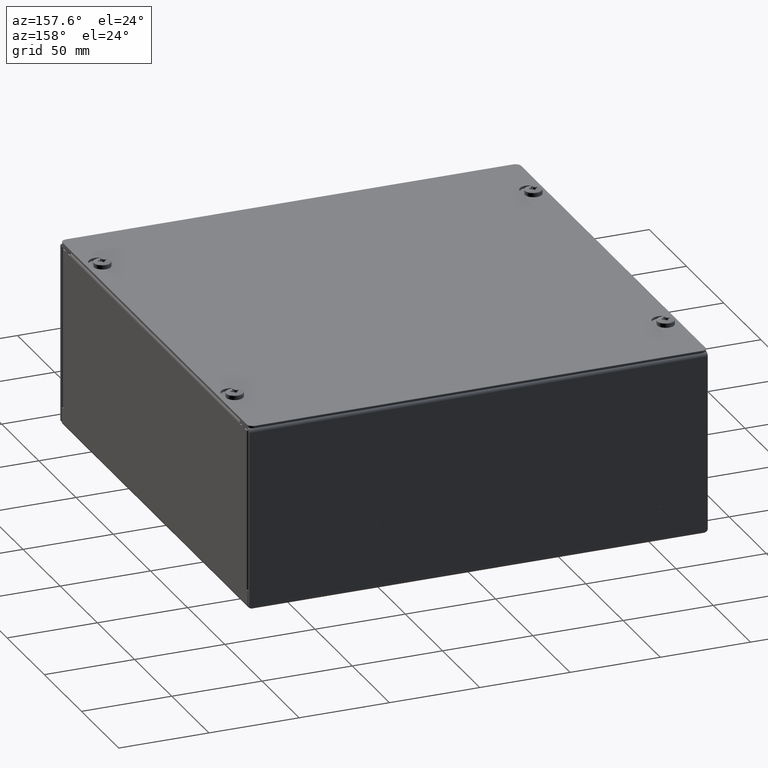
[diagram: clean part render]
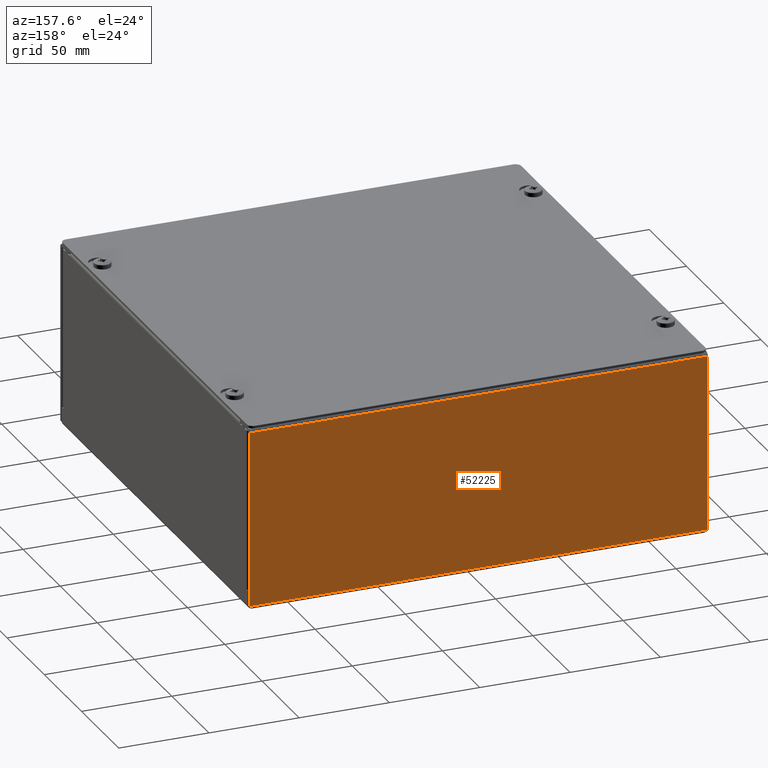
[diagram: same view with one face highlighted and labeled with its STEP entity id]
A machine part, auxiliary view. The second image highlights one B-rep face of the part: STEP entity #52225.
In plain terms, the highlighted planar face has unit normal (0, 1, -0).
Its self-contained STEP definition (entity closure, byte-faithful):
#4186=FACE_BOUND('',#9693,.T.);
#4187=FACE_BOUND('',#9694,.T.);
#4188=FACE_BOUND('',#9695,.T.);
#4189=FACE_BOUND('',#9696,.T.);
#4190=FACE_BOUND('',#9697,.T.);
#4191=FACE_BOUND('',#9698,.T.);
#4192=FACE_BOUND('',#9699,.T.);
#4193=FACE_BOUND('',#9700,.T.);
#4194=FACE_BOUND('',#9701,.T.);
#4195=FACE_BOUND('',#9702,.T.);
#4196=FACE_BOUND('',#9703,.T.);
#4197=FACE_BOUND('',#9704,.T.);
#4198=FACE_BOUND('',#9705,.T.);
#4199=FACE_BOUND('',#9706,.T.);
#4200=FACE_BOUND('',#9707,.T.);
#4201=FACE_BOUND('',#9708,.T.);
#4202=FACE_BOUND('',#9709,.T.);
#4203=FACE_BOUND('',#9710,.T.);
#4204=FACE_BOUND('',#9711,.T.);
#4205=FACE_BOUND('',#9712,.T.);
#4789=PLANE('',#55614);
#6790=FACE_OUTER_BOUND('',#9692,.T.);
#9692=EDGE_LOOP('',(#38918,#38919,#38920,#38921));
#9693=EDGE_LOOP('',(#38922,#38923,#38924,#38925));
#9694=EDGE_LOOP('',(#38926,#38927,#38928,#38929));
#9695=EDGE_LOOP('',(#38930,#38931,#38932,#38933));
#9696=EDGE_LOOP('',(#38934,#38935,#38936,#38937));
#9697=EDGE_LOOP('',(#38938,#38939,#38940,#38941));
#9698=EDGE_LOOP('',(#38942,#38943,#38944,#38945));
#9699=EDGE_LOOP('',(#38946,#38947,#38948,#38949));
#9700=EDGE_LOOP('',(#38950,#38951,#38952,#38953));
#9701=EDGE_LOOP('',(#38954,#38955,#38956,#38957));
#9702=EDGE_LOOP('',(#38958,#38959,#38960,#38961));
#9703=EDGE_LOOP('',(#38962,#38963,#38964,#38965));
#9704=EDGE_LOOP('',(#38966,#38967,#38968,#38969));
#9705=EDGE_LOOP('',(#38970,#38971,#38972,#38973));
#9706=EDGE_LOOP('',(#38974,#38975,#38976,#38977));
#9707=EDGE_LOOP('',(#38978,#38979,#38980,#38981));
#9708=EDGE_LOOP('',(#38982,#38983,#38984,#38985));
#9709=EDGE_LOOP('',(#38986,#38987,#38988,#38989));
#9710=EDGE_LOOP('',(#38990,#38991,#38992,#38993));
#9711=EDGE_LOOP('',(#38994,#38995,#38996,#38997));
#9712=EDGE_LOOP('',(#38998,#38999,#39000,#39001));
#12431=LINE('',#69014,#17936);
#12436=LINE('',#69025,#17941);
#12443=LINE('',#69046,#17948);
#12453=LINE('',#69077,#17958);
#12463=LINE('',#69110,#17968);
#12468=LINE('',#69121,#17973);
#12479=LINE('',#69158,#17984);
#12484=LINE('',#69169,#17989);
#12495=LINE('',#69206,#18000);
#12500=LINE('',#69217,#18005);
#12507=LINE('',#69238,#18012);
#12517=LINE('',#69269,#18022);
#12523=LINE('',#69286,#18028);
#12533=LINE('',#69317,#18038);
#12539=LINE('',#69334,#18044);
#12549=LINE('',#69365,#18054);
#12555=LINE('',#69382,#18060);
#12565=LINE('',#69413,#18070);
#12571=LINE('',#69430,#18076);
#12581=LINE('',#69461,#18086);
#12591=LINE('',#69494,#18096);
#12596=LINE('',#69505,#18101);
#12607=LINE('',#69542,#18112);
#12612=LINE('',#69553,#18117);
#12619=LINE('',#69574,#18124);
#12629=LINE('',#69605,#18134);
#12635=LINE('',#69622,#18140);
#12645=LINE('',#69653,#18150);
#12655=LINE('',#69686,#18160);
#12660=LINE('',#69697,#18165);
#12667=LINE('',#69718,#18172);
#12677=LINE('',#69749,#18182);
#12683=LINE('',#69766,#18188);
#12693=LINE('',#69797,#18198);
#12699=LINE('',#69814,#18204);
#12709=LINE('',#69845,#18214);
#12719=LINE('',#69878,#18224);
#12724=LINE('',#69889,#18229);
#12731=LINE('',#69910,#18236);
#12741=LINE('',#69941,#18246);
#13293=LINE('',#71479,#18798);
#13300=LINE('',#71500,#18805);
#13303=LINE('',#71506,#18808);
#13304=LINE('',#71507,#18809);
#17936=VECTOR('',#57813,0.393700787401575);
#17941=VECTOR('',#57822,0.393700787401575);
#17948=VECTOR('',#57845,0.393700787401575);
#17958=VECTOR('',#57877,0.393700787401575);
#17968=VECTOR('',#57909,0.393700787401575);
#17973=VECTOR('',#57918,0.393700787401575);
#17984=VECTOR('',#57957,0.393700787401575);
#17989=VECTOR('',#57966,0.393700787401575);
#18000=VECTOR('',#58005,0.393700787401575);
#18005=VECTOR('',#58014,0.393700787401575);
#18012=VECTOR('',#58037,0.393700787401575);
#18022=VECTOR('',#58069,0.393700787401575);
#18028=VECTOR('',#58085,0.393700787401575);
#18038=VECTOR('',#58117,0.393700787401575);
#18044=VECTOR('',#58133,0.393700787401575);
#18054=VECTOR('',#58165,0.393700787401575);
#18060=VECTOR('',#58181,0.393700787401575);
#18070=VECTOR('',#58213,0.393700787401575);
#18076=VECTOR('',#58229,0.393700787401575);
#18086=VECTOR('',#58261,0.393700787401575);
#18096=VECTOR('',#58293,0.393700787401575);
#18101=VECTOR('',#58302,0.393700787401575);
#18112=VECTOR('',#58341,0.393700787401575);
#18117=VECTOR('',#58350,0.393700787401575);
#18124=VECTOR('',#58373,0.393700787401575);
#18134=VECTOR('',#58405,0.393700787401575);
#18140=VECTOR('',#58421,0.393700787401575);
#18150=VECTOR('',#58453,0.393700787401575);
#18160=VECTOR('',#58485,0.393700787401575);
#18165=VECTOR('',#58494,0.393700787401575);
#18172=VECTOR('',#58517,0.393700787401575);
#18182=VECTOR('',#58549,0.393700787401575);
#18188=VECTOR('',#58565,0.393700787401575);
#18198=VECTOR('',#58597,0.393700787401575);
#18204=VECTOR('',#58613,0.393700787401575);
#18214=VECTOR('',#58645,0.393700787401575);
#18224=VECTOR('',#58677,0.393700787401575);
#18229=VECTOR('',#58686,0.393700787401575);
#18236=VECTOR('',#58709,0.393700787401575);
#18246=VECTOR('',#58741,0.393700787401575);
#18798=VECTOR('',#60297,0.393700787401575);
#18805=VECTOR('',#60324,0.393700787401575);
#18808=VECTOR('',#60329,0.393700787401575);
#18809=VECTOR('',#60330,0.393700787401575);
#23322=CIRCLE('',#54788,0.6875);
#23326=CIRCLE('',#54797,0.6874);
#23330=CIRCLE('',#54806,0.5625);
#23334=CIRCLE('',#54812,0.5624);
#23338=CIRCLE('',#54820,0.5624);
#23342=CIRCLE('',#54829,0.5625);
#23346=CIRCLE('',#54836,0.4374);
#23350=CIRCLE('',#54845,0.4375);
#23354=CIRCLE('',#54852,0.4374);
#23358=CIRCLE('',#54861,0.4375);
#23362=CIRCLE('',#54870,0.8749);
#23366=CIRCLE('',#54876,0.875);
#23370=CIRCLE('',#54886,0.6875);
#23374=CIRCLE('',#54892,0.6874);
#23378=CIRCLE('',#54902,0.6875);
#23382=CIRCLE('',#54908,0.6874);
#23386=CIRCLE('',#54918,0.5625);
#23390=CIRCLE('',#54924,0.5624);
#23394=CIRCLE('',#54934,0.5625);
#23398=CIRCLE('',#54940,0.5624);
#23402=CIRCLE('',#54948,0.5624);
#23406=CIRCLE('',#54957,0.5625);
#23410=CIRCLE('',#54964,0.5624);
#23414=CIRCLE('',#54973,0.5625);
#23418=CIRCLE('',#54982,0.6874);
#23422=CIRCLE('',#54988,0.6875);
#23426=CIRCLE('',#54998,0.6874);
#23430=CIRCLE('',#55004,0.6875);
#23434=CIRCLE('',#55012,0.875);
#23438=CIRCLE('',#55021,0.8749);
#23442=CIRCLE('',#55030,0.4375);
#23446=CIRCLE('',#55036,0.4374);
#23450=CIRCLE('',#55046,0.4375);
#23454=CIRCLE('',#55052,0.4374);
#23458=CIRCLE('',#55062,0.5625);
#23462=CIRCLE('',#55068,0.5624);
#23466=CIRCLE('',#55076,0.5624);
#23470=CIRCLE('',#55085,0.5625);
#23474=CIRCLE('',#55094,0.6874);
#23478=CIRCLE('',#55100,0.6875);
#24039=VERTEX_POINT('',#68995);
#24040=VERTEX_POINT('',#68997);
#24046=VERTEX_POINT('',#69012);
#24050=VERTEX_POINT('',#69024);
#24055=VERTEX_POINT('',#69043);
#24056=VERTEX_POINT('',#69045);
#24062=VERTEX_POINT('',#69060);
#24066=VERTEX_POINT('',#69072);
#24071=VERTEX_POINT('',#69091);
#24072=VERTEX_POINT('',#69093);
#24078=VERTEX_POINT('',#69108);
#24082=VERTEX_POINT('',#69120);
#24087=VERTEX_POINT('',#69139);
#24088=VERTEX_POINT('',#69141);
#24094=VERTEX_POINT('',#69156);
#24098=VERTEX_POINT('',#69168);
#24103=VERTEX_POINT('',#69187);
#24104=VERTEX_POINT('',#69189);
#24110=VERTEX_POINT('',#69204);
#24114=VERTEX_POINT('',#69216);
#24119=VERTEX_POINT('',#69235);
#24120=VERTEX_POINT('',#69237);
#24126=VERTEX_POINT('',#69252);
#24130=VERTEX_POINT('',#69264);
#24135=VERTEX_POINT('',#69283);
#24136=VERTEX_POINT('',#69285);
#24142=VERTEX_POINT('',#69300);
#24146=VERTEX_POINT('',#69312);
#24151=VERTEX_POINT('',#69331);
#24152=VERTEX_POINT('',#69333);
#24158=VERTEX_POINT('',#69348);
#24162=VERTEX_POINT('',#69360);
#24167=VERTEX_POINT('',#69379);
#24168=VERTEX_POINT('',#69381);
#24174=VERTEX_POINT('',#69396);
#24178=VERTEX_POINT('',#69408);
#24183=VERTEX_POINT('',#69427);
#24184=VERTEX_POINT('',#69429);
#24190=VERTEX_POINT('',#69444);
#24194=VERTEX_POINT('',#69456);
#24199=VERTEX_POINT('',#69475);
#24200=VERTEX_POINT('',#69477);
#24206=VERTEX_POINT('',#69492);
#24210=VERTEX_POINT('',#69504);
#24215=VERTEX_POINT('',#69523);
#24216=VERTEX_POINT('',#69525);
#24222=VERTEX_POINT('',#69540);
#24226=VERTEX_POINT('',#69552);
#24231=VERTEX_POINT('',#69571);
#24232=VERTEX_POINT('',#69573);
#24238=VERTEX_POINT('',#69588);
#24242=VERTEX_POINT('',#69600);
#24247=VERTEX_POINT('',#69619);
#24248=VERTEX_POINT('',#69621);
#24254=VERTEX_POINT('',#69636);
#24258=VERTEX_POINT('',#69648);
#24263=VERTEX_POINT('',#69667);
#24264=VERTEX_POINT('',#69669);
#24270=VERTEX_POINT('',#69684);
#24274=VERTEX_POINT('',#69696);
#24279=VERTEX_POINT('',#69715);
#24280=VERTEX_POINT('',#69717);
#24286=VERTEX_POINT('',#69732);
#24290=VERTEX_POINT('',#69744);
#24295=VERTEX_POINT('',#69763);
#24296=VERTEX_POINT('',#69765);
#24302=VERTEX_POINT('',#69780);
#24306=VERTEX_POINT('',#69792);
#24311=VERTEX_POINT('',#69811);
#24312=VERTEX_POINT('',#69813);
#24318=VERTEX_POINT('',#69828);
#24322=VERTEX_POINT('',#69840);
#24327=VERTEX_POINT('',#69859);
#24328=VERTEX_POINT('',#69861);
#24334=VERTEX_POINT('',#69876);
#24338=VERTEX_POINT('',#69888);
#24343=VERTEX_POINT('',#69907);
#24344=VERTEX_POINT('',#69909);
#24350=VERTEX_POINT('',#69924);
#24354=VERTEX_POINT('',#69936);
#24837=VERTEX_POINT('',#71476);
#24838=VERTEX_POINT('',#71478);
#24842=VERTEX_POINT('',#71499);
#24844=VERTEX_POINT('',#71505);
#29032=EDGE_CURVE('',#24040,#24039,#23322,.T.);
#29040=EDGE_CURVE('',#24039,#24046,#12431,.T.);
#29045=EDGE_CURVE('',#24050,#24040,#12436,.T.);
#29048=EDGE_CURVE('',#24046,#24050,#23326,.T.);
#29056=EDGE_CURVE('',#24056,#24055,#12443,.T.);
#29064=EDGE_CURVE('',#24055,#24062,#23330,.T.);
#29069=EDGE_CURVE('',#24066,#24056,#23334,.T.);
#29072=EDGE_CURVE('',#24062,#24066,#12453,.T.);
#29080=EDGE_CURVE('',#24072,#24071,#23338,.T.);
#29088=EDGE_CURVE('',#24071,#24078,#12463,.T.);
#29093=EDGE_CURVE('',#24082,#24072,#12468,.T.);
#29096=EDGE_CURVE('',#24078,#24082,#23342,.T.);
#29104=EDGE_CURVE('',#24088,#24087,#23346,.T.);
#29112=EDGE_CURVE('',#24087,#24094,#12479,.T.);
#29117=EDGE_CURVE('',#24098,#24088,#12484,.T.);
#29120=EDGE_CURVE('',#24094,#24098,#23350,.T.);
#29128=EDGE_CURVE('',#24104,#24103,#23354,.T.);
#29136=EDGE_CURVE('',#24103,#24110,#12495,.T.);
#29141=EDGE_CURVE('',#24114,#24104,#12500,.T.);
#29144=EDGE_CURVE('',#24110,#24114,#23358,.T.);
#29152=EDGE_CURVE('',#24120,#24119,#12507,.T.);
#29160=EDGE_CURVE('',#24119,#24126,#23362,.T.);
#29165=EDGE_CURVE('',#24130,#24120,#23366,.T.);
#29168=EDGE_CURVE('',#24126,#24130,#12517,.T.);
#29176=EDGE_CURVE('',#24136,#24135,#12523,.T.);
#29184=EDGE_CURVE('',#24135,#24142,#23370,.T.);
#29189=EDGE_CURVE('',#24146,#24136,#23374,.T.);
#29192=EDGE_CURVE('',#24142,#24146,#12533,.T.);
#29200=EDGE_CURVE('',#24152,#24151,#12539,.T.);
#29208=EDGE_CURVE('',#24151,#24158,#23378,.T.);
#29213=EDGE_CURVE('',#24162,#24152,#23382,.T.);
#29216=EDGE_CURVE('',#24158,#24162,#12549,.T.);
#29224=EDGE_CURVE('',#24168,#24167,#12555,.T.);
#29232=EDGE_CURVE('',#24167,#24174,#23386,.T.);
#29237=EDGE_CURVE('',#24178,#24168,#23390,.T.);
#29240=EDGE_CURVE('',#24174,#24178,#12565,.T.);
#29248=EDGE_CURVE('',#24184,#24183,#12571,.T.);
#29256=EDGE_CURVE('',#24183,#24190,#23394,.T.);
#29261=EDGE_CURVE('',#24194,#24184,#23398,.T.);
#29264=EDGE_CURVE('',#24190,#24194,#12581,.T.);
#29272=EDGE_CURVE('',#24200,#24199,#23402,.T.);
#29280=EDGE_CURVE('',#24199,#24206,#12591,.T.);
#29285=EDGE_CURVE('',#24210,#24200,#12596,.T.);
#29288=EDGE_CURVE('',#24206,#24210,#23406,.T.);
#29296=EDGE_CURVE('',#24216,#24215,#23410,.T.);
#29304=EDGE_CURVE('',#24215,#24222,#12607,.T.);
#29309=EDGE_CURVE('',#24226,#24216,#12612,.T.);
#29312=EDGE_CURVE('',#24222,#24226,#23414,.T.);
#29320=EDGE_CURVE('',#24232,#24231,#12619,.T.);
#29328=EDGE_CURVE('',#24231,#24238,#23418,.T.);
#29333=EDGE_CURVE('',#24242,#24232,#23422,.T.);
#29336=EDGE_CURVE('',#24238,#24242,#12629,.T.);
#29344=EDGE_CURVE('',#24248,#24247,#12635,.T.);
#29352=EDGE_CURVE('',#24247,#24254,#23426,.T.);
#29357=EDGE_CURVE('',#24258,#24248,#23430,.T.);
#29360=EDGE_CURVE('',#24254,#24258,#12645,.T.);
#29368=EDGE_CURVE('',#24264,#24263,#23434,.T.);
#29376=EDGE_CURVE('',#24263,#24270,#12655,.T.);
#29381=EDGE_CURVE('',#24274,#24264,#12660,.T.);
#29384=EDGE_CURVE('',#24270,#24274,#23438,.T.);
#29392=EDGE_CURVE('',#24280,#24279,#12667,.T.);
#29400=EDGE_CURVE('',#24279,#24286,#23442,.T.);
#29405=EDGE_CURVE('',#24290,#24280,#23446,.T.);
#29408=EDGE_CURVE('',#24286,#24290,#12677,.T.);
#29416=EDGE_CURVE('',#24296,#24295,#12683,.T.);
#29424=EDGE_CURVE('',#24295,#24302,#23450,.T.);
#29429=EDGE_CURVE('',#24306,#24296,#23454,.T.);
#29432=EDGE_CURVE('',#24302,#24306,#12693,.T.);
#29440=EDGE_CURVE('',#24312,#24311,#12699,.T.);
#29448=EDGE_CURVE('',#24311,#24318,#23458,.T.);
#29453=EDGE_CURVE('',#24322,#24312,#23462,.T.);
#29456=EDGE_CURVE('',#24318,#24322,#12709,.T.);
#29464=EDGE_CURVE('',#24328,#24327,#23466,.T.);
#29472=EDGE_CURVE('',#24327,#24334,#12719,.T.);
#29477=EDGE_CURVE('',#24338,#24328,#12724,.T.);
#29480=EDGE_CURVE('',#24334,#24338,#23470,.T.);
#29488=EDGE_CURVE('',#24344,#24343,#12731,.T.);
#29496=EDGE_CURVE('',#24343,#24350,#23474,.T.);
#29501=EDGE_CURVE('',#24354,#24344,#23478,.T.);
#29504=EDGE_CURVE('',#24350,#24354,#12741,.T.);
#30275=EDGE_CURVE('',#24838,#24837,#13293,.T.);
#30285=EDGE_CURVE('',#24842,#24838,#13300,.T.);
#30288=EDGE_CURVE('',#24837,#24844,#13303,.T.);
#30289=EDGE_CURVE('',#24844,#24842,#13304,.T.);
#38918=ORIENTED_EDGE('',*,*,#30275,.T.);
#38919=ORIENTED_EDGE('',*,*,#30288,.T.);
#38920=ORIENTED_EDGE('',*,*,#30289,.T.);
#38921=ORIENTED_EDGE('',*,*,#30285,.T.);
#38922=ORIENTED_EDGE('',*,*,#29048,.T.);
#38923=ORIENTED_EDGE('',*,*,#29045,.T.);
#38924=ORIENTED_EDGE('',*,*,#29032,.T.);
#38925=ORIENTED_EDGE('',*,*,#29040,.T.);
#38926=ORIENTED_EDGE('',*,*,#29072,.T.);
#38927=ORIENTED_EDGE('',*,*,#29069,.T.);
#38928=ORIENTED_EDGE('',*,*,#29056,.T.);
#38929=ORIENTED_EDGE('',*,*,#29064,.T.);
#38930=ORIENTED_EDGE('',*,*,#29096,.T.);
#38931=ORIENTED_EDGE('',*,*,#29093,.T.);
#38932=ORIENTED_EDGE('',*,*,#29080,.T.);
#38933=ORIENTED_EDGE('',*,*,#29088,.T.);
#38934=ORIENTED_EDGE('',*,*,#29120,.T.);
#38935=ORIENTED_EDGE('',*,*,#29117,.T.);
#38936=ORIENTED_EDGE('',*,*,#29104,.T.);
#38937=ORIENTED_EDGE('',*,*,#29112,.T.);
#38938=ORIENTED_EDGE('',*,*,#29144,.T.);
#38939=ORIENTED_EDGE('',*,*,#29141,.T.);
#38940=ORIENTED_EDGE('',*,*,#29128,.T.);
#38941=ORIENTED_EDGE('',*,*,#29136,.T.);
#38942=ORIENTED_EDGE('',*,*,#29168,.T.);
#38943=ORIENTED_EDGE('',*,*,#29165,.T.);
#38944=ORIENTED_EDGE('',*,*,#29152,.T.);
#38945=ORIENTED_EDGE('',*,*,#29160,.T.);
#38946=ORIENTED_EDGE('',*,*,#29192,.T.);
#38947=ORIENTED_EDGE('',*,*,#29189,.T.);
#38948=ORIENTED_EDGE('',*,*,#29176,.T.);
#38949=ORIENTED_EDGE('',*,*,#29184,.T.);
#38950=ORIENTED_EDGE('',*,*,#29216,.T.);
#38951=ORIENTED_EDGE('',*,*,#29213,.T.);
#38952=ORIENTED_EDGE('',*,*,#29200,.T.);
#38953=ORIENTED_EDGE('',*,*,#29208,.T.);
#38954=ORIENTED_EDGE('',*,*,#29240,.T.);
#38955=ORIENTED_EDGE('',*,*,#29237,.T.);
#38956=ORIENTED_EDGE('',*,*,#29224,.T.);
#38957=ORIENTED_EDGE('',*,*,#29232,.T.);
#38958=ORIENTED_EDGE('',*,*,#29264,.T.);
#38959=ORIENTED_EDGE('',*,*,#29261,.T.);
#38960=ORIENTED_EDGE('',*,*,#29248,.T.);
#38961=ORIENTED_EDGE('',*,*,#29256,.T.);
#38962=ORIENTED_EDGE('',*,*,#29288,.T.);
#38963=ORIENTED_EDGE('',*,*,#29285,.T.);
#38964=ORIENTED_EDGE('',*,*,#29272,.T.);
#38965=ORIENTED_EDGE('',*,*,#29280,.T.);
#38966=ORIENTED_EDGE('',*,*,#29312,.T.);
#38967=ORIENTED_EDGE('',*,*,#29309,.T.);
#38968=ORIENTED_EDGE('',*,*,#29296,.T.);
#38969=ORIENTED_EDGE('',*,*,#29304,.T.);
#38970=ORIENTED_EDGE('',*,*,#29336,.T.);
#38971=ORIENTED_EDGE('',*,*,#29333,.T.);
#38972=ORIENTED_EDGE('',*,*,#29320,.T.);
#38973=ORIENTED_EDGE('',*,*,#29328,.T.);
#38974=ORIENTED_EDGE('',*,*,#29360,.T.);
#38975=ORIENTED_EDGE('',*,*,#29357,.T.);
#38976=ORIENTED_EDGE('',*,*,#29344,.T.);
#38977=ORIENTED_EDGE('',*,*,#29352,.T.);
#38978=ORIENTED_EDGE('',*,*,#29384,.T.);
#38979=ORIENTED_EDGE('',*,*,#29381,.T.);
#38980=ORIENTED_EDGE('',*,*,#29368,.T.);
#38981=ORIENTED_EDGE('',*,*,#29376,.T.);
#38982=ORIENTED_EDGE('',*,*,#29408,.T.);
#38983=ORIENTED_EDGE('',*,*,#29405,.T.);
#38984=ORIENTED_EDGE('',*,*,#29392,.T.);
#38985=ORIENTED_EDGE('',*,*,#29400,.T.);
#38986=ORIENTED_EDGE('',*,*,#29432,.T.);
#38987=ORIENTED_EDGE('',*,*,#29429,.T.);
#38988=ORIENTED_EDGE('',*,*,#29416,.T.);
#38989=ORIENTED_EDGE('',*,*,#29424,.T.);
#38990=ORIENTED_EDGE('',*,*,#29456,.T.);
#38991=ORIENTED_EDGE('',*,*,#29453,.T.);
#38992=ORIENTED_EDGE('',*,*,#29440,.T.);
#38993=ORIENTED_EDGE('',*,*,#29448,.T.);
#38994=ORIENTED_EDGE('',*,*,#29480,.T.);
#38995=ORIENTED_EDGE('',*,*,#29477,.T.);
#38996=ORIENTED_EDGE('',*,*,#29464,.T.);
#38997=ORIENTED_EDGE('',*,*,#29472,.T.);
#38998=ORIENTED_EDGE('',*,*,#29504,.T.);
#38999=ORIENTED_EDGE('',*,*,#29501,.T.);
#39000=ORIENTED_EDGE('',*,*,#29488,.T.);
#39001=ORIENTED_EDGE('',*,*,#29496,.T.);
#52225=ADVANCED_FACE('',(#6790,#4186,#4187,#4188,#4189,#4190,#4191,#4192,
#4193,#4194,#4195,#4196,#4197,#4198,#4199,#4200,#4201,#4202,#4203,#4204,
#4205),#4789,.T.);
#54788=AXIS2_PLACEMENT_3D('',#68998,#57798,#57799);
#54797=AXIS2_PLACEMENT_3D('',#69029,#57828,#57829);
#54806=AXIS2_PLACEMENT_3D('',#69062,#57858,#57859);
#54812=AXIS2_PLACEMENT_3D('',#69073,#57871,#57872);
#54820=AXIS2_PLACEMENT_3D('',#69094,#57894,#57895);
#54829=AXIS2_PLACEMENT_3D('',#69125,#57924,#57925);
#54836=AXIS2_PLACEMENT_3D('',#69142,#57942,#57943);
#54845=AXIS2_PLACEMENT_3D('',#69173,#57972,#57973);
#54852=AXIS2_PLACEMENT_3D('',#69190,#57990,#57991);
#54861=AXIS2_PLACEMENT_3D('',#69221,#58020,#58021);
#54870=AXIS2_PLACEMENT_3D('',#69254,#58050,#58051);
#54876=AXIS2_PLACEMENT_3D('',#69265,#58063,#58064);
#54886=AXIS2_PLACEMENT_3D('',#69302,#58098,#58099);
#54892=AXIS2_PLACEMENT_3D('',#69313,#58111,#58112);
#54902=AXIS2_PLACEMENT_3D('',#69350,#58146,#58147);
#54908=AXIS2_PLACEMENT_3D('',#69361,#58159,#58160);
#54918=AXIS2_PLACEMENT_3D('',#69398,#58194,#58195);
#54924=AXIS2_PLACEMENT_3D('',#69409,#58207,#58208);
#54934=AXIS2_PLACEMENT_3D('',#69446,#58242,#58243);
#54940=AXIS2_PLACEMENT_3D('',#69457,#58255,#58256);
#54948=AXIS2_PLACEMENT_3D('',#69478,#58278,#58279);
#54957=AXIS2_PLACEMENT_3D('',#69509,#58308,#58309);
#54964=AXIS2_PLACEMENT_3D('',#69526,#58326,#58327);
#54973=AXIS2_PLACEMENT_3D('',#69557,#58356,#58357);
#54982=AXIS2_PLACEMENT_3D('',#69590,#58386,#58387);
#54988=AXIS2_PLACEMENT_3D('',#69601,#58399,#58400);
#54998=AXIS2_PLACEMENT_3D('',#69638,#58434,#58435);
#55004=AXIS2_PLACEMENT_3D('',#69649,#58447,#58448);
#55012=AXIS2_PLACEMENT_3D('',#69670,#58470,#58471);
#55021=AXIS2_PLACEMENT_3D('',#69701,#58500,#58501);
#55030=AXIS2_PLACEMENT_3D('',#69734,#58530,#58531);
#55036=AXIS2_PLACEMENT_3D('',#69745,#58543,#58544);
#55046=AXIS2_PLACEMENT_3D('',#69782,#58578,#58579);
#55052=AXIS2_PLACEMENT_3D('',#69793,#58591,#58592);
#55062=AXIS2_PLACEMENT_3D('',#69830,#58626,#58627);
#55068=AXIS2_PLACEMENT_3D('',#69841,#58639,#58640);
#55076=AXIS2_PLACEMENT_3D('',#69862,#58662,#58663);
#55085=AXIS2_PLACEMENT_3D('',#69893,#58692,#58693);
#55094=AXIS2_PLACEMENT_3D('',#69926,#58722,#58723);
#55100=AXIS2_PLACEMENT_3D('',#69937,#58735,#58736);
#55614=AXIS2_PLACEMENT_3D('',#71504,#60327,#60328);
#57798=DIRECTION('center_axis',(-1.75198115615465E-32,-1.,3.37621368633969E-31));
#57799=DIRECTION('ref_axis',(-1.,0.,0.));
#57813=DIRECTION('',(-2.17642743684023E-13,3.37621368633973E-31,1.));
#57822=DIRECTION('',(3.26464115526035E-13,3.37621368633963E-31,1.));
#57828=DIRECTION('center_axis',(1.75198115615465E-32,1.,-3.37621368633969E-31));
#57829=DIRECTION('ref_axis',(1.,0.,0.));
#57845=DIRECTION('',(-1.39316847513431E-11,-3.37621368633725E-31,-1.));
#57858=DIRECTION('center_axis',(-1.75198115615465E-32,-1.,3.37621368633969E-31));
#57859=DIRECTION('ref_axis',(-1.,0.,0.));
#57871=DIRECTION('center_axis',(1.75198115615465E-32,1.,-3.37621368633969E-31));
#57872=DIRECTION('ref_axis',(1.,0.,0.));
#57877=DIRECTION('',(1.39316847513552E-11,-3.37621368634213E-31,-1.));
#57894=DIRECTION('center_axis',(1.75198115615465E-32,1.,-3.37621368633969E-31));
#57895=DIRECTION('ref_axis',(1.,0.,0.));
#57909=DIRECTION('',(1.39316847513552E-11,3.37621368633725E-31,1.));
#57918=DIRECTION('',(-1.39316847513431E-11,3.37621368634213E-31,1.));
#57924=DIRECTION('center_axis',(-1.75198115615465E-32,-1.,3.37621368633969E-31));
#57925=DIRECTION('ref_axis',(-1.,0.,0.));
#57942=DIRECTION('center_axis',(1.75198115615465E-32,1.,-3.37621368633969E-31));
#57943=DIRECTION('ref_axis',(1.,0.,0.));
#57957=DIRECTION('',(6.96423270686278E-12,-3.37621368634091E-31,-1.));
#57966=DIRECTION('',(-5.91506275761856E-63,-3.37621368633969E-31,-1.));
#57972=DIRECTION('center_axis',(-1.75198115615465E-32,-1.,3.37621368633969E-31));
#57973=DIRECTION('ref_axis',(-1.,0.,0.));
#57990=DIRECTION('center_axis',(1.75198115615465E-32,1.,-3.37621368633969E-31));
#57991=DIRECTION('ref_axis',(1.,0.,0.));
#58005=DIRECTION('',(-6.96423270685065E-12,-3.37621368633847E-31,-1.));
#58014=DIRECTION('',(6.96423270685671E-12,-3.37621368634091E-31,-1.));
#58020=DIRECTION('center_axis',(-1.75198115615465E-32,-1.,3.37621368633969E-31));
#58021=DIRECTION('ref_axis',(-1.,0.,0.));
#58037=DIRECTION('',(1.,-1.75198115615465E-32,0.));
#58050=DIRECTION('center_axis',(1.75198115615465E-32,1.,-3.37621368633969E-31));
#58051=DIRECTION('ref_axis',(1.,0.,0.));
#58063=DIRECTION('center_axis',(-1.75198115615465E-32,-1.,3.37621368633969E-31));
#58064=DIRECTION('ref_axis',(-1.,0.,0.));
#58069=DIRECTION('',(1.,-1.75198115615465E-32,0.));
#58085=DIRECTION('',(-1.,1.75198115621343E-32,1.74114194947218E-12));
#58098=DIRECTION('center_axis',(-1.75198115615465E-32,-1.,3.37621368633969E-31));
#58099=DIRECTION('ref_axis',(-1.,0.,0.));
#58111=DIRECTION('center_axis',(1.75198115615465E-32,1.,-3.37621368633969E-31));
#58112=DIRECTION('ref_axis',(1.,0.,0.));
#58117=DIRECTION('',(-1.,1.751981156331E-32,5.22342584843474E-12));
#58133=DIRECTION('',(-1.,1.75198115621343E-32,1.74114194947825E-12));
#58146=DIRECTION('center_axis',(-1.75198115615465E-32,-1.,3.37621368633969E-31));
#58147=DIRECTION('ref_axis',(-1.,0.,0.));
#58159=DIRECTION('center_axis',(1.75198115615465E-32,1.,-3.37621368633969E-31));
#58160=DIRECTION('ref_axis',(1.,0.,0.));
#58165=DIRECTION('',(-1.,1.75198115609586E-32,-1.74114194947218E-12));
#58181=DIRECTION('',(1.,-1.75198115621344E-32,-1.74146059391334E-12));
#58194=DIRECTION('center_axis',(-1.75198115615465E-32,-1.,3.37621368633969E-31));
#58195=DIRECTION('ref_axis',(-1.,0.,0.));
#58207=DIRECTION('center_axis',(1.75198115615465E-32,1.,-3.37621368633969E-31));
#58208=DIRECTION('ref_axis',(1.,0.,0.));
#58213=DIRECTION('',(1.,-1.75198115609585E-32,1.74146059392547E-12));
#58229=DIRECTION('',(1.,-1.75198115621344E-32,-1.7414605939194E-12));
#58242=DIRECTION('center_axis',(-1.75198115615465E-32,-1.,3.37621368633969E-31));
#58243=DIRECTION('ref_axis',(-1.,0.,0.));
#58255=DIRECTION('center_axis',(1.75198115615465E-32,1.,-3.37621368633969E-31));
#58256=DIRECTION('ref_axis',(1.,0.,0.));
#58261=DIRECTION('',(1.,-1.75198115609585E-32,1.7414605939194E-12));
#58278=DIRECTION('center_axis',(1.75198115615465E-32,1.,-3.37621368633969E-31));
#58279=DIRECTION('ref_axis',(1.,0.,0.));
#58293=DIRECTION('',(-1.,1.75198115621344E-32,1.7414605939194E-12));
#58302=DIRECTION('',(-1.,1.75198115609585E-32,-1.7414605939194E-12));
#58308=DIRECTION('center_axis',(-1.75198115615465E-32,-1.,3.37621368633969E-31));
#58309=DIRECTION('ref_axis',(-1.,0.,0.));
#58326=DIRECTION('center_axis',(1.75198115615465E-32,1.,-3.37621368633969E-31));
#58327=DIRECTION('ref_axis',(1.,0.,0.));
#58341=DIRECTION('',(-1.,1.75198115621344E-32,1.74146059392547E-12));
#58350=DIRECTION('',(-1.,1.75198115609585E-32,-1.74146059391334E-12));
#58356=DIRECTION('center_axis',(-1.75198115615465E-32,-1.,3.37621368633969E-31));
#58357=DIRECTION('ref_axis',(-1.,0.,0.));
#58373=DIRECTION('',(1.,-1.75198115621343E-32,-1.74114194947825E-12));
#58386=DIRECTION('center_axis',(1.75198115615465E-32,1.,-3.37621368633969E-31));
#58387=DIRECTION('ref_axis',(1.,0.,0.));
#58399=DIRECTION('center_axis',(-1.75198115615465E-32,-1.,3.37621368633969E-31));
#58400=DIRECTION('ref_axis',(-1.,0.,0.));
#58405=DIRECTION('',(1.,-1.75198115609586E-32,1.74114194947218E-12));
#58421=DIRECTION('',(1.,-1.75198115621343E-32,-1.74114194947218E-12));
#58434=DIRECTION('center_axis',(1.75198115615465E-32,1.,-3.37621368633969E-31));
#58435=DIRECTION('ref_axis',(1.,0.,0.));
#58447=DIRECTION('center_axis',(-1.75198115615465E-32,-1.,3.37621368633969E-31));
#58448=DIRECTION('ref_axis',(-1.,0.,0.));
#58453=DIRECTION('',(1.,-1.75198115621343E-32,-1.74114194947825E-12));
#58470=DIRECTION('center_axis',(-1.75198115615465E-32,-1.,3.37621368633969E-31));
#58471=DIRECTION('ref_axis',(-1.,0.,0.));
#58485=DIRECTION('',(-1.,1.75198115615465E-32,0.));
#58494=DIRECTION('',(-1.,1.75198115615465E-32,0.));
#58500=DIRECTION('center_axis',(1.75198115615465E-32,1.,-3.37621368633969E-31));
#58501=DIRECTION('ref_axis',(1.,0.,0.));
#58517=DIRECTION('',(5.91506275761856E-63,3.37621368633969E-31,1.));
#58530=DIRECTION('center_axis',(-1.75198115615465E-32,-1.,3.37621368633969E-31));
#58531=DIRECTION('ref_axis',(-1.,0.,0.));
#58543=DIRECTION('center_axis',(1.75198115615465E-32,1.,-3.37621368633969E-31));
#58544=DIRECTION('ref_axis',(1.,0.,0.));
#58549=DIRECTION('',(5.91506275761856E-63,3.37621368633969E-31,1.));
#58565=DIRECTION('',(6.96423270685671E-12,3.37621368633847E-31,1.));
#58578=DIRECTION('center_axis',(-1.75198115615465E-32,-1.,3.37621368633969E-31));
#58579=DIRECTION('ref_axis',(-1.,0.,0.));
#58591=DIRECTION('center_axis',(1.75198115615465E-32,1.,-3.37621368633969E-31));
#58592=DIRECTION('ref_axis',(1.,0.,0.));
#58597=DIRECTION('',(-6.96423270685671E-12,3.37621368634091E-31,1.));
#58613=DIRECTION('',(1.39316847513795E-11,-3.37621368634213E-31,-1.));
#58626=DIRECTION('center_axis',(-1.75198115615465E-32,-1.,3.37621368633969E-31));
#58627=DIRECTION('ref_axis',(-1.,0.,0.));
#58639=DIRECTION('center_axis',(1.75198115615465E-32,1.,-3.37621368633969E-31));
#58640=DIRECTION('ref_axis',(1.,0.,0.));
#58645=DIRECTION('',(-1.39316847513552E-11,-3.37621368633725E-31,-1.));
#58662=DIRECTION('center_axis',(1.75198115615465E-32,1.,-3.37621368633969E-31));
#58663=DIRECTION('ref_axis',(1.,0.,0.));
#58677=DIRECTION('',(5.91506275761856E-63,3.37621368633969E-31,1.));
#58686=DIRECTION('',(5.91506275761856E-63,3.37621368633969E-31,1.));
#58692=DIRECTION('center_axis',(-1.75198115615465E-32,-1.,3.37621368633969E-31));
#58693=DIRECTION('ref_axis',(-1.,0.,0.));
#58709=DIRECTION('',(-3.26464115526035E-13,-3.37621368633963E-31,-1.));
#58722=DIRECTION('center_axis',(1.75198115615465E-32,1.,-3.37621368633969E-31));
#58723=DIRECTION('ref_axis',(1.,0.,0.));
#58735=DIRECTION('center_axis',(-1.75198115615465E-32,-1.,3.37621368633969E-31));
#58736=DIRECTION('ref_axis',(-1.,0.,0.));
#58741=DIRECTION('',(2.17642743684023E-13,-3.37621368633973E-31,-1.));
#60297=DIRECTION('',(1.,-1.75198115615465E-32,0.));
#60324=DIRECTION('',(0.,-6.12323399573677E-17,1.));
#60327=DIRECTION('center_axis',(1.75198115615465E-32,1.,-3.37621368633969E-31));
#60328=DIRECTION('ref_axis',(0.,3.37621368633969E-31,1.));
#60329=DIRECTION('',(0.,6.12323399573677E-17,-1.));
#60330=DIRECTION('',(-1.,1.75198115615465E-32,0.));
#68995=CARTESIAN_POINT('',(-0.0624999999999999,5.,0.690346803118542));
#68997=CARTESIAN_POINT('',(-0.0624999999999997,5.,2.05965319688146));
#68998=CARTESIAN_POINT('Origin',(1.74838271594513E-16,5.,1.375));
#69012=CARTESIAN_POINT('',(-0.0624999999999999,5.,0.690447218981619));
#69014=CARTESIAN_POINT('',(-0.0625000000001424,5.,1.34517340155926));
#69024=CARTESIAN_POINT('',(-0.0624999999999997,5.,2.05955278101838));
#69025=CARTESIAN_POINT('',(-0.0625000000000095,5.,2.0297763905092));
#69029=CARTESIAN_POINT('Origin',(1.74838271594513E-16,5.,1.375));
#69043=CARTESIAN_POINT('',(3.613,5.,0.627226629224626));
#69045=CARTESIAN_POINT('',(3.613,5.,0.627327026714069));
#69046=CARTESIAN_POINT('',(3.61300000000956,5.,1.31366351333187));
#69060=CARTESIAN_POINT('',(3.613,5.,1.74777337077537));
#69062=CARTESIAN_POINT('Origin',(3.563,5.,1.1875));
#69072=CARTESIAN_POINT('',(3.613,5.,1.74767297328593));
#69073=CARTESIAN_POINT('Origin',(3.563,5.,1.1875));
#69077=CARTESIAN_POINT('',(3.61299999999824,5.,1.87388668541285));
#69091=CARTESIAN_POINT('',(-3.613,5.,1.74767297328593));
#69093=CARTESIAN_POINT('',(-3.613,5.,0.627327026714069));
#69094=CARTESIAN_POINT('Origin',(-3.563,5.,1.1875));
#69108=CARTESIAN_POINT('',(-3.613,5.,1.74777337077537));
#69110=CARTESIAN_POINT('',(-3.61299999999824,5.,1.87383648666813));
#69120=CARTESIAN_POINT('',(-3.613,5.,0.627226629224626));
#69121=CARTESIAN_POINT('',(-3.61300000000956,5.,1.31361331458714));
#69125=CARTESIAN_POINT('Origin',(-3.563,5.,1.1875));
#69139=CARTESIAN_POINT('',(1.915,5.,0.626932829519946));
#69141=CARTESIAN_POINT('',(1.915,5.,1.49806717048005));
#69142=CARTESIAN_POINT('Origin',(1.875,5.,1.0625));
#69156=CARTESIAN_POINT('',(1.915,5.,0.62683240882526));
#69158=CARTESIAN_POINT('',(1.91499999999522,5.,1.31346641476664));
#69168=CARTESIAN_POINT('',(1.915,5.,1.49816759117474));
#69169=CARTESIAN_POINT('',(1.915,5.,1.74908379558737));
#69173=CARTESIAN_POINT('Origin',(1.875,5.,1.0625));
#69187=CARTESIAN_POINT('',(-1.835,5.,0.626932829519946));
#69189=CARTESIAN_POINT('',(-1.835,5.,1.49806717048005));
#69190=CARTESIAN_POINT('Origin',(-1.875,5.,1.0625));
#69204=CARTESIAN_POINT('',(-1.835,5.,0.62683240882526));
#69206=CARTESIAN_POINT('',(-1.83499999999522,5.,1.31346641476636));
#69216=CARTESIAN_POINT('',(-1.835,5.,1.49816759117474));
#69217=CARTESIAN_POINT('',(-1.83500000000175,5.,1.74908379558098));
#69221=CARTESIAN_POINT('Origin',(-1.875,5.,1.0625));
#69235=CARTESIAN_POINT('',(-0.871679419282112,5.,1.45));
#69237=CARTESIAN_POINT('',(-0.871779788708134,5.,1.45));
#69238=CARTESIAN_POINT('',(-0.435889894354067,5.,1.45));
#69252=CARTESIAN_POINT('',(0.871679419282112,5.,1.45));
#69254=CARTESIAN_POINT('Origin',(1.74838271594513E-16,5.,1.375));
#69264=CARTESIAN_POINT('',(0.871779788708135,5.,1.45));
#69265=CARTESIAN_POINT('Origin',(1.74838271594513E-16,5.,1.375));
#69269=CARTESIAN_POINT('',(0.435839709641056,5.,1.45));
#69283=CARTESIAN_POINT('',(2.87834680311854,5.,1.125));
#69285=CARTESIAN_POINT('',(2.87844721898162,5.,1.125));
#69286=CARTESIAN_POINT('',(1.43922360949005,5.,1.12500000000251));
#69300=CARTESIAN_POINT('',(4.24765319688146,5.,1.125));
#69302=CARTESIAN_POINT('Origin',(3.563,5.,1.1875));
#69312=CARTESIAN_POINT('',(4.24755278101838,5.,1.125));
#69313=CARTESIAN_POINT('Origin',(3.563,5.,1.1875));
#69317=CARTESIAN_POINT('',(2.12382659843844,5.,1.12500000001109));
#69331=CARTESIAN_POINT('',(-4.24765319688146,5.,1.125));
#69333=CARTESIAN_POINT('',(-4.24755278101838,5.,1.125));
#69334=CARTESIAN_POINT('',(-2.12377639050995,5.,1.1249999999963));
#69348=CARTESIAN_POINT('',(-2.87834680311854,5.,1.125));
#69350=CARTESIAN_POINT('Origin',(-3.563,5.,1.1875));
#69360=CARTESIAN_POINT('',(-2.87844721898162,5.,1.125));
#69361=CARTESIAN_POINT('Origin',(-3.563,5.,1.1875));
#69365=CARTESIAN_POINT('',(-1.43917340155851,5.,1.12500000000251));
#69379=CARTESIAN_POINT('',(2.43527337077537,5.,1.1125));
#69381=CARTESIAN_POINT('',(2.43517297328593,5.,1.1125));
#69382=CARTESIAN_POINT('',(1.21758648664219,5.,1.11250000000212));
#69396=CARTESIAN_POINT('',(1.31472662922463,5.,1.1125));
#69398=CARTESIAN_POINT('Origin',(1.875,5.,1.0625));
#69408=CARTESIAN_POINT('',(1.31482702671407,5.,1.1125));
#69409=CARTESIAN_POINT('Origin',(1.875,5.,1.0625));
#69413=CARTESIAN_POINT('',(0.657363314613086,5.,1.11249999999885));
#69427=CARTESIAN_POINT('',(-1.31472662922463,5.,1.1125));
#69429=CARTESIAN_POINT('',(-1.31482702671407,5.,1.1125));
#69430=CARTESIAN_POINT('',(-0.657413513357807,5.,1.11249999999886));
#69444=CARTESIAN_POINT('',(-2.43527337077537,5.,1.1125));
#69446=CARTESIAN_POINT('Origin',(-1.875,5.,1.0625));
#69456=CARTESIAN_POINT('',(-2.43517297328593,5.,1.1125));
#69457=CARTESIAN_POINT('Origin',(-1.875,5.,1.0625));
#69461=CARTESIAN_POINT('',(-1.21763668538691,5.,1.11250000000212));
#69475=CARTESIAN_POINT('',(-2.43517297328593,5.,1.0125));
#69477=CARTESIAN_POINT('',(-1.31482702671407,5.,1.0125));
#69478=CARTESIAN_POINT('Origin',(-1.875,5.,1.0625));
#69492=CARTESIAN_POINT('',(-2.43527337077537,5.,1.0125));
#69494=CARTESIAN_POINT('',(-1.21758648664382,5.,1.01249999999788));
#69504=CARTESIAN_POINT('',(-1.31472662922463,5.,1.0125));
#69505=CARTESIAN_POINT('',(-0.657363314611453,5.,1.01250000000114));
#69509=CARTESIAN_POINT('Origin',(-1.875,5.,1.0625));
#69523=CARTESIAN_POINT('',(1.31482702671407,5.,1.0125));
#69525=CARTESIAN_POINT('',(2.43517297328593,5.,1.0125));
#69526=CARTESIAN_POINT('Origin',(1.875,5.,1.0625));
#69540=CARTESIAN_POINT('',(1.31472662922463,5.,1.0125));
#69542=CARTESIAN_POINT('',(0.657413513356175,5.,1.01250000000114));
#69552=CARTESIAN_POINT('',(2.43527337077537,5.,1.0125));
#69553=CARTESIAN_POINT('',(1.21763668538855,5.,1.01249999999788));
#69557=CARTESIAN_POINT('Origin',(1.875,5.,1.0625));
#69571=CARTESIAN_POINT('',(-4.24755278101838,5.,1.25));
#69573=CARTESIAN_POINT('',(-4.24765319688146,5.,1.25));
#69574=CARTESIAN_POINT('',(-2.12382659844138,5.,1.2499999999963));
#69588=CARTESIAN_POINT('',(-2.87844721898162,5.,1.25));
#69590=CARTESIAN_POINT('Origin',(-3.563,5.,1.1875));
#69600=CARTESIAN_POINT('',(-2.87834680311854,5.,1.25));
#69601=CARTESIAN_POINT('Origin',(-3.563,5.,1.1875));
#69605=CARTESIAN_POINT('',(-1.43922360949016,5.,1.25000000000251));
#69619=CARTESIAN_POINT('',(2.87844721898162,5.,1.25));
#69621=CARTESIAN_POINT('',(2.87834680311854,5.,1.25));
#69622=CARTESIAN_POINT('',(1.43917340155862,5.,1.25000000000251));
#69636=CARTESIAN_POINT('',(4.24755278101838,5.,1.25));
#69638=CARTESIAN_POINT('Origin',(3.563,5.,1.1875));
#69648=CARTESIAN_POINT('',(4.24765319688146,5.,1.25));
#69649=CARTESIAN_POINT('Origin',(3.563,5.,1.1875));
#69653=CARTESIAN_POINT('',(2.12377639050854,5.,1.2500000000037));
#69667=CARTESIAN_POINT('',(0.871779788708135,5.,1.3));
#69669=CARTESIAN_POINT('',(-0.871779788708134,5.,1.3));
#69670=CARTESIAN_POINT('Origin',(1.74838271594513E-16,5.,1.375));
#69684=CARTESIAN_POINT('',(0.871679419282112,5.,1.3));
#69686=CARTESIAN_POINT('',(0.435889894354067,5.,1.3));
#69696=CARTESIAN_POINT('',(-0.871679419282112,5.,1.3));
#69697=CARTESIAN_POINT('',(-0.435839709641056,5.,1.3));
#69701=CARTESIAN_POINT('Origin',(1.74838271594513E-16,5.,1.375));
#69715=CARTESIAN_POINT('',(-1.915,5.,1.49816759117474));
#69717=CARTESIAN_POINT('',(-1.915,5.,1.49806717048005));
#69718=CARTESIAN_POINT('',(-1.915,5.,1.74903358524003));
#69732=CARTESIAN_POINT('',(-1.915,5.,0.62683240882526));
#69734=CARTESIAN_POINT('Origin',(-1.875,5.,1.0625));
#69744=CARTESIAN_POINT('',(-1.915,5.,0.626932829519946));
#69745=CARTESIAN_POINT('Origin',(-1.875,5.,1.0625));
#69749=CARTESIAN_POINT('',(-1.915,5.,1.31341620441263));
#69763=CARTESIAN_POINT('',(1.835,5.,1.49816759117474));
#69765=CARTESIAN_POINT('',(1.835,5.,1.49806717048005));
#69766=CARTESIAN_POINT('',(1.83500000000175,5.,1.74903358523364));
#69780=CARTESIAN_POINT('',(1.835,5.,0.62683240882526));
#69782=CARTESIAN_POINT('Origin',(1.875,5.,1.0625));
#69792=CARTESIAN_POINT('',(1.835,5.,0.626932829519946));
#69793=CARTESIAN_POINT('Origin',(1.875,5.,1.0625));
#69797=CARTESIAN_POINT('',(1.83499999999522,5.,1.31341620441902));
#69811=CARTESIAN_POINT('',(-3.513,5.,0.627226629224626));
#69813=CARTESIAN_POINT('',(-3.513,5.,0.627327026714069));
#69814=CARTESIAN_POINT('',(-3.51300000000956,5.,1.31366351333256));
#69828=CARTESIAN_POINT('',(-3.513,5.,1.74777337077537));
#69830=CARTESIAN_POINT('Origin',(-3.563,5.,1.1875));
#69840=CARTESIAN_POINT('',(-3.513,5.,1.74767297328593));
#69841=CARTESIAN_POINT('Origin',(-3.563,5.,1.1875));
#69845=CARTESIAN_POINT('',(-3.51299999999824,5.,1.87388668541216));
#69859=CARTESIAN_POINT('',(3.513,5.,1.74767297328593));
#69861=CARTESIAN_POINT('',(3.513,5.,0.627327026714069));
#69862=CARTESIAN_POINT('Origin',(3.563,5.,1.1875));
#69876=CARTESIAN_POINT('',(3.513,5.,1.74777337077537));
#69878=CARTESIAN_POINT('',(3.513,5.,1.87383648664297));
#69888=CARTESIAN_POINT('',(3.513,5.,0.627226629224626));
#69889=CARTESIAN_POINT('',(3.513,5.,1.31361331461231));
#69893=CARTESIAN_POINT('Origin',(3.563,5.,1.1875));
#69907=CARTESIAN_POINT('',(0.0625000000000002,5.,2.05955278101838));
#69909=CARTESIAN_POINT('',(0.0625000000000003,5.,2.05965319688146));
#69910=CARTESIAN_POINT('',(0.0624999999999905,5.,2.02982659844072));
#69924=CARTESIAN_POINT('',(0.0625000000000001,5.,0.690447218981619));
#69926=CARTESIAN_POINT('Origin',(1.74838271594513E-16,5.,1.375));
#69936=CARTESIAN_POINT('',(0.0625000000000001,5.,0.690346803118542));
#69937=CARTESIAN_POINT('Origin',(1.74838271594513E-16,5.,1.375));
#69941=CARTESIAN_POINT('',(0.0624999999998576,5.,1.34522360949082));
#71476=CARTESIAN_POINT('',(5.,5.,3.914));
#71478=CARTESIAN_POINT('',(-5.,5.,3.914));
#71479=CARTESIAN_POINT('',(-2.5,5.,3.914));
#71499=CARTESIAN_POINT('',(-5.,5.,0.086));
#71500=CARTESIAN_POINT('',(-5.,5.,0.));
#71504=CARTESIAN_POINT('Origin',(0.,5.,2.));
#71505=CARTESIAN_POINT('',(5.,5.,0.086));
#71506=CARTESIAN_POINT('',(5.,5.,4.));
#71507=CARTESIAN_POINT('',(-2.5,5.,0.0860000000000001));